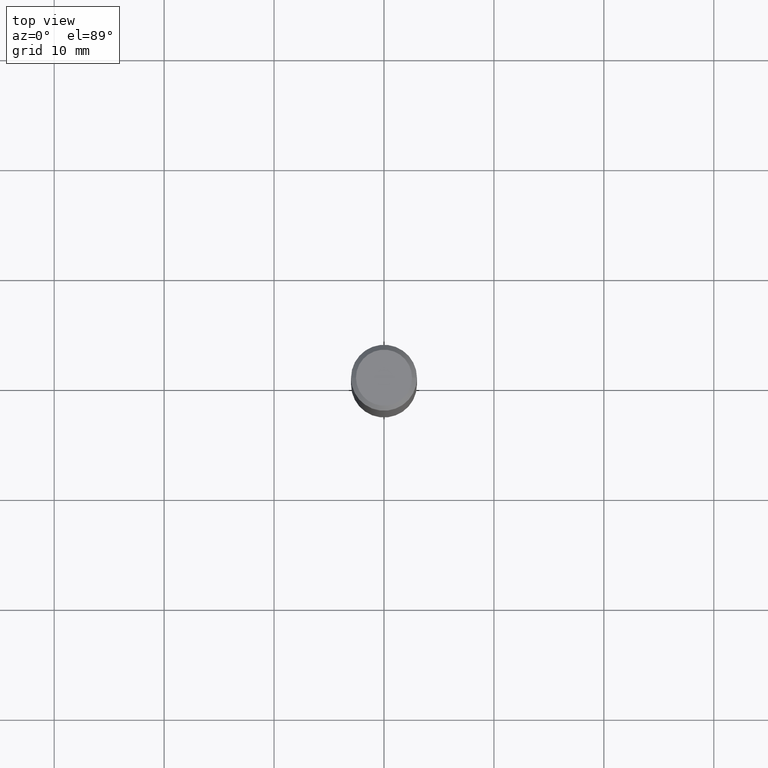
[diagram: clean part render]
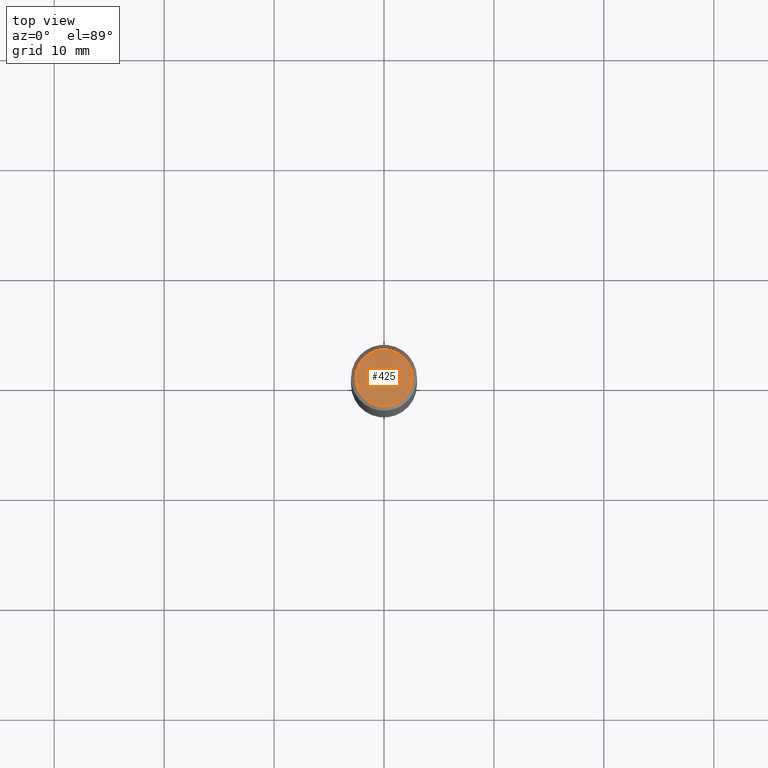
[diagram: same view with one face highlighted and labeled with its STEP entity id]
A machine part, top view. The second image highlights one B-rep face of the part: STEP entity #425.
In plain terms, the highlighted planar face has unit normal (0, -0, -1).
Its self-contained STEP definition (entity closure, byte-faithful):
#28 = EDGE_CURVE ( 'NONE', #91, #161, #170, .T. ) ;
#60 = EDGE_LOOP ( 'NONE', ( #197, #83 ) ) ;
#83 = ORIENTED_EDGE ( 'NONE', *, *, #28, .T. ) ;
#88 = AXIS2_PLACEMENT_3D ( 'NONE', #321, #177, #150 ) ;
#91 = VERTEX_POINT ( 'NONE', #220 ) ;
#133 = DIRECTION ( 'NONE',  ( -1.000000000000000000, 6.982962677686265922E-15, -4.876176775795935793E-29 ) ) ;
#150 = DIRECTION ( 'NONE',  ( 1.000000000000000000, -6.982962677686266711E-15, 4.875668750515085695E-29 ) ) ;
#161 = VERTEX_POINT ( 'NONE', #374 ) ;
#170 = CIRCLE ( 'NONE', #88, 0.1003850000000000159 ) ;
#177 = DIRECTION ( 'NONE',  ( -2.445468806185136597E-29, 3.491481338843145583E-15, 1.000000000000000000 ) ) ;
#191 = AXIS2_PLACEMENT_3D ( 'NONE', #416, #463, #265 ) ;
#197 = ORIENTED_EDGE ( 'NONE', *, *, #224, .T. ) ;
#203 = PLANE ( 'NONE',  #478 ) ;
#215 = CIRCLE ( 'NONE', #191, 0.1003850000000000159 ) ;
#220 = CARTESIAN_POINT ( 'NONE',  ( 0.1003850000000000159, -7.803837484803599345E-16, -2.049109640502812012E-17 ) ) ;
#224 = EDGE_CURVE ( 'NONE', #161, #91, #215, .T. ) ;
#248 = DIRECTION ( 'NONE',  ( 2.438088387897960049E-29, -3.491481338843145188E-15, -1.000000000000000000 ) ) ;
#265 = DIRECTION ( 'NONE',  ( 1.000000000000000000, -6.982962677686266711E-15, 4.875668750515085695E-29 ) ) ;
#314 = CARTESIAN_POINT ( 'NONE',  ( 2.505516853152066359E-46, -3.577214035530481610E-32, -1.024554820251665005E-17 ) ) ;
#321 = CARTESIAN_POINT ( 'NONE',  ( 5.011033706304132718E-46, -7.154428071060963220E-32, -2.049109640503330010E-17 ) ) ;
#374 = CARTESIAN_POINT ( 'NONE',  ( -0.1003850000000000159, 7.319105043583384717E-16, -2.049109640503831060E-17 ) ) ;
#416 = CARTESIAN_POINT ( 'NONE',  ( 5.011033706304132718E-46, -7.154428071060963220E-32, -2.049109640503330010E-17 ) ) ;
#425 = ADVANCED_FACE ( 'NONE', ( #471 ), #203, .F. ) ;
#463 = DIRECTION ( 'NONE',  ( -2.445468806185136597E-29, 3.491481338843145583E-15, 1.000000000000000000 ) ) ;
#471 = FACE_OUTER_BOUND ( 'NONE', #60, .T. ) ;
#478 = AXIS2_PLACEMENT_3D ( 'NONE', #314, #248, #133 ) ;